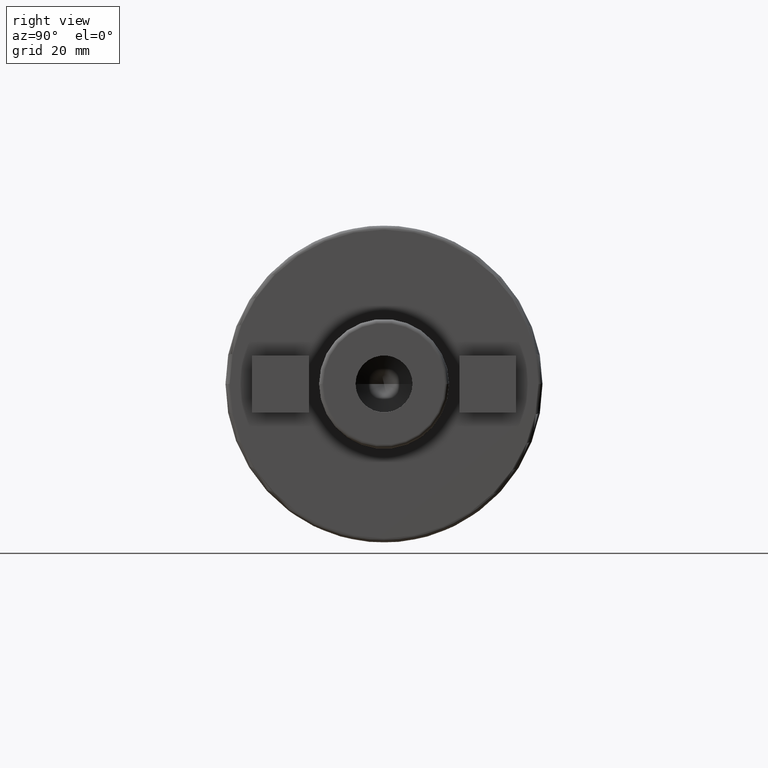
[diagram: clean part render]
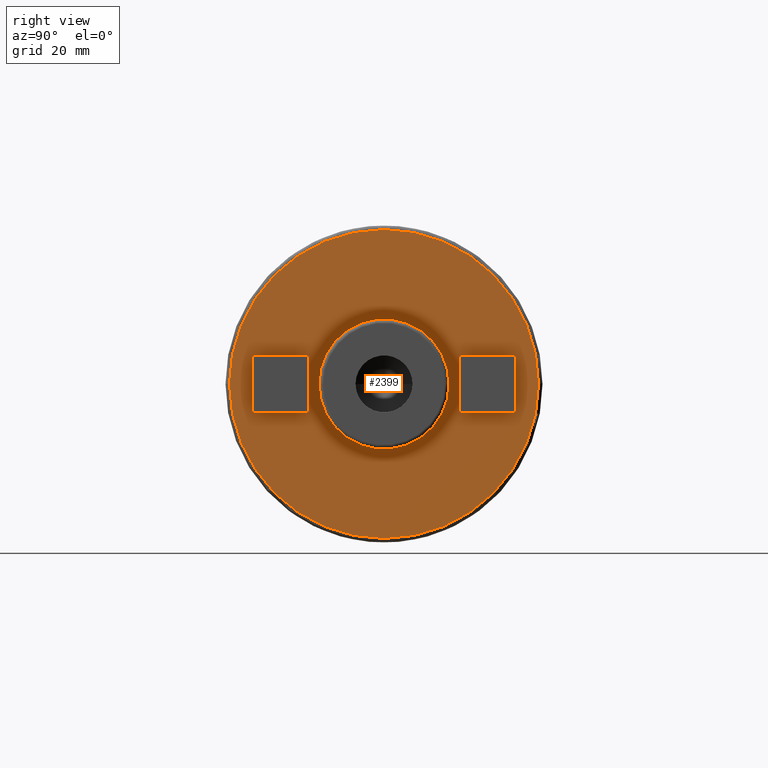
[diagram: same view with one face highlighted and labeled with its STEP entity id]
A machine part, right view. The second image highlights one B-rep face of the part: STEP entity #2399.
In plain terms, the highlighted planar face has unit normal (1, 0, 0).
Its self-contained STEP definition (entity closure, byte-faithful):
#415=CARTESIAN_POINT('',(5.E1,0.E0,0.E0));
#416=DIRECTION('',(1.E0,0.E0,0.E0));
#417=DIRECTION('',(0.E0,1.E0,0.E0));
#418=AXIS2_PLACEMENT_3D('',#415,#416,#417);
#420=CARTESIAN_POINT('',(5.E1,0.E0,0.E0));
#421=DIRECTION('',(-1.E0,0.E0,0.E0));
#422=DIRECTION('',(0.E0,1.E0,0.E0));
#423=AXIS2_PLACEMENT_3D('',#420,#421,#422);
#425=CARTESIAN_POINT('',(5.E1,0.E0,0.E0));
#426=DIRECTION('',(1.E0,0.E0,0.E0));
#427=DIRECTION('',(0.E0,-1.E0,0.E0));
#428=AXIS2_PLACEMENT_3D('',#425,#426,#427);
#430=CARTESIAN_POINT('',(5.E1,0.E0,0.E0));
#431=DIRECTION('',(1.E0,0.E0,0.E0));
#432=DIRECTION('',(0.E0,1.E0,0.E0));
#433=AXIS2_PLACEMENT_3D('',#430,#431,#432);
#435=DIRECTION('',(0.E0,-1.E0,0.E0));
#436=VECTOR('',#435,1.4E1);
#437=CARTESIAN_POINT('',(5.E1,3.25E1,7.E0));
#438=LINE('',#437,#436);
#439=DIRECTION('',(0.E0,0.E0,-1.E0));
#440=VECTOR('',#439,1.4E1);
#441=CARTESIAN_POINT('',(5.E1,1.85E1,7.E0));
#442=LINE('',#441,#440);
#443=DIRECTION('',(0.E0,1.E0,0.E0));
#444=VECTOR('',#443,1.4E1);
#445=CARTESIAN_POINT('',(5.E1,1.85E1,-7.E0));
#446=LINE('',#445,#444);
#447=DIRECTION('',(0.E0,0.E0,1.E0));
#448=VECTOR('',#447,1.4E1);
#449=CARTESIAN_POINT('',(5.E1,3.25E1,-7.E0));
#450=LINE('',#449,#448);
#451=DIRECTION('',(0.E0,-1.E0,0.E0));
#452=VECTOR('',#451,1.4E1);
#453=CARTESIAN_POINT('',(5.E1,-1.85E1,7.E0));
#454=LINE('',#453,#452);
#455=DIRECTION('',(0.E0,0.E0,-1.E0));
#456=VECTOR('',#455,1.4E1);
#457=CARTESIAN_POINT('',(5.E1,-3.25E1,7.E0));
#458=LINE('',#457,#456);
#459=DIRECTION('',(0.E0,1.E0,0.E0));
#460=VECTOR('',#459,1.4E1);
#461=CARTESIAN_POINT('',(5.E1,-3.25E1,-7.E0));
#462=LINE('',#461,#460);
#463=DIRECTION('',(0.E0,0.E0,1.E0));
#464=VECTOR('',#463,1.4E1);
#465=CARTESIAN_POINT('',(5.E1,-1.85E1,-7.E0));
#466=LINE('',#465,#464);
#1750=CARTESIAN_POINT('',(5.E1,1.6E1,0.E0));
#1751=CARTESIAN_POINT('',(5.E1,-1.6E1,0.E0));
#1752=VERTEX_POINT('',#1750);
#1753=VERTEX_POINT('',#1751);
#1758=CARTESIAN_POINT('',(5.E1,-3.8E1,0.E0));
#1759=CARTESIAN_POINT('',(5.E1,3.8E1,0.E0));
#1760=VERTEX_POINT('',#1758);
#1761=VERTEX_POINT('',#1759);
#1792=CARTESIAN_POINT('',(5.E1,3.25E1,7.E0));
#1793=CARTESIAN_POINT('',(5.E1,1.85E1,7.E0));
#1794=VERTEX_POINT('',#1792);
#1795=VERTEX_POINT('',#1793);
#1796=CARTESIAN_POINT('',(5.E1,1.85E1,-7.E0));
#1797=VERTEX_POINT('',#1796);
#1798=CARTESIAN_POINT('',(5.E1,3.25E1,-7.E0));
#1799=VERTEX_POINT('',#1798);
#1800=CARTESIAN_POINT('',(5.E1,-1.85E1,7.E0));
#1801=CARTESIAN_POINT('',(5.E1,-3.25E1,7.E0));
#1802=VERTEX_POINT('',#1800);
#1803=VERTEX_POINT('',#1801);
#1804=CARTESIAN_POINT('',(5.E1,-3.25E1,-7.E0));
#1805=VERTEX_POINT('',#1804);
#1806=CARTESIAN_POINT('',(5.E1,-1.85E1,-7.E0));
#1807=VERTEX_POINT('',#1806);
#2364=CARTESIAN_POINT('',(5.E1,0.E0,0.E0));
#2365=DIRECTION('',(1.E0,0.E0,0.E0));
#2366=DIRECTION('',(0.E0,-1.E0,0.E0));
#2367=AXIS2_PLACEMENT_3D('',#2364,#2365,#2366);
#2368=PLANE('',#2367);
#2369=ORIENTED_EDGE('',*,*,#2346,.F.);
#2370=ORIENTED_EDGE('',*,*,#2331,.F.);
#2371=EDGE_LOOP('',(#2369,#2370));
#2372=FACE_OUTER_BOUND('',#2371,.F.);
#2374=ORIENTED_EDGE('',*,*,#2373,.T.);
#2376=ORIENTED_EDGE('',*,*,#2375,.F.);
#2377=EDGE_LOOP('',(#2374,#2376));
#2378=FACE_BOUND('',#2377,.F.);
#2380=ORIENTED_EDGE('',*,*,#2379,.T.);
#2382=ORIENTED_EDGE('',*,*,#2381,.T.);
#2384=ORIENTED_EDGE('',*,*,#2383,.T.);
#2386=ORIENTED_EDGE('',*,*,#2385,.T.);
#2387=EDGE_LOOP('',(#2380,#2382,#2384,#2386));
#2388=FACE_BOUND('',#2387,.F.);
#2390=ORIENTED_EDGE('',*,*,#2389,.T.);
#2392=ORIENTED_EDGE('',*,*,#2391,.T.);
#2394=ORIENTED_EDGE('',*,*,#2393,.T.);
#2396=ORIENTED_EDGE('',*,*,#2395,.T.);
#2397=EDGE_LOOP('',(#2390,#2392,#2394,#2396));
#2398=FACE_BOUND('',#2397,.F.);
#2399=ADVANCED_FACE('',(#2372,#2378,#2388,#2398),#2368,.T.);
#419=CIRCLE('',#418,1.6E1);
#424=CIRCLE('',#423,1.6E1);
#429=CIRCLE('',#428,3.8E1);
#434=CIRCLE('',#433,3.8E1);
#2331=EDGE_CURVE('',#1761,#1760,#434,.T.);
#2346=EDGE_CURVE('',#1760,#1761,#429,.T.);
#2373=EDGE_CURVE('',#1752,#1753,#419,.T.);
#2375=EDGE_CURVE('',#1752,#1753,#424,.T.);
#2379=EDGE_CURVE('',#1794,#1795,#438,.T.);
#2381=EDGE_CURVE('',#1795,#1797,#442,.T.);
#2383=EDGE_CURVE('',#1797,#1799,#446,.T.);
#2385=EDGE_CURVE('',#1799,#1794,#450,.T.);
#2389=EDGE_CURVE('',#1802,#1803,#454,.T.);
#2391=EDGE_CURVE('',#1803,#1805,#458,.T.);
#2393=EDGE_CURVE('',#1805,#1807,#462,.T.);
#2395=EDGE_CURVE('',#1807,#1802,#466,.T.);